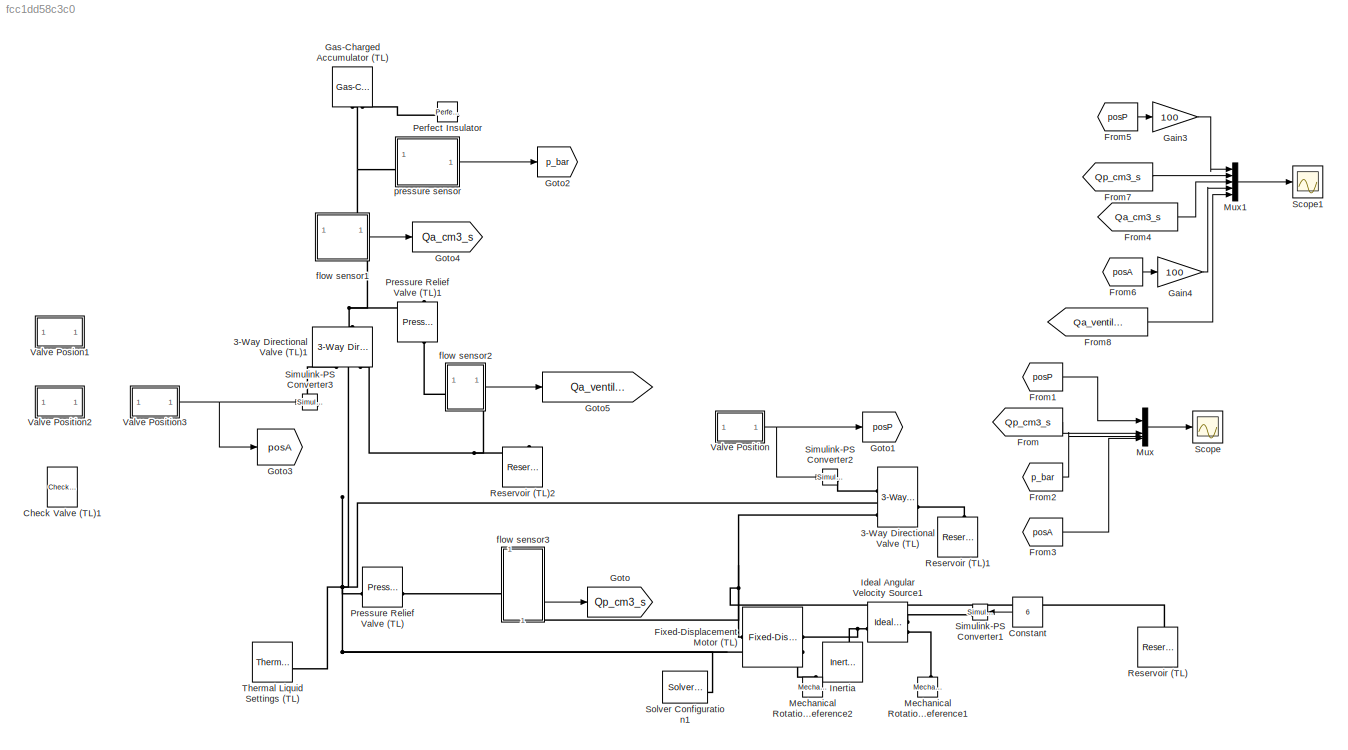
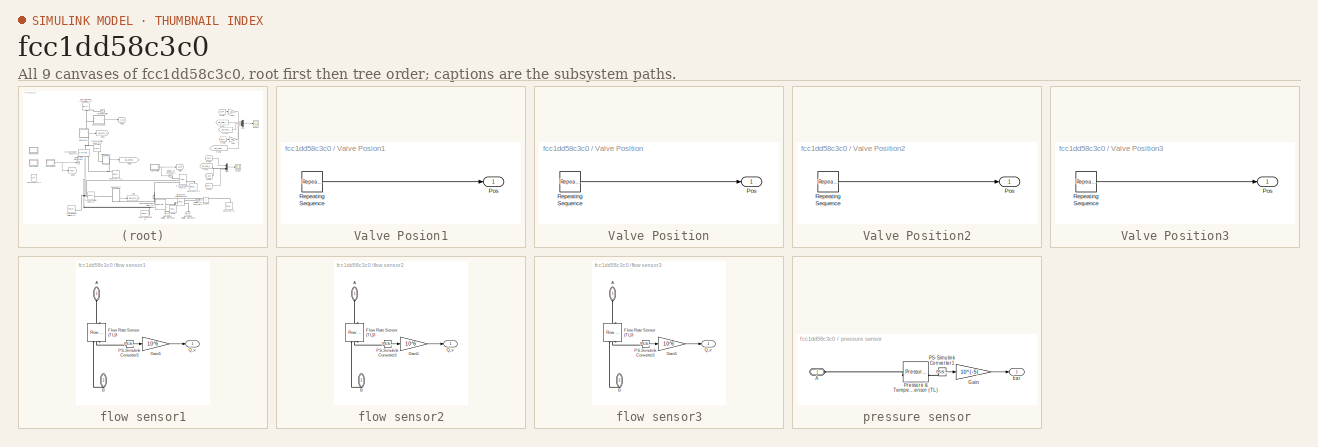
[diagram: thumbnail index - all 9 canvases of the model, root first then tree order]
MODEL slx_fcc1dd58c3c0
KIND model
CONFIG AbsTol = auto
CONFIG EnableMultiTasking = off
CONFIG FixedStep = auto
CONFIG MaxStep = auto
CONFIG MinStep = auto
CONFIG RelTol = 1e-3
CONFIG SampleTimeConstraint = Unconstrained
CONFIG SolverName = VariableStepAuto
CONFIG StartTime = 0.0
CONFIG StopTime = 30
BLOCK [Reference] 3-Way Directional Valve (TL)  REF=SimscapeFluids_lib/Thermal Liquid/Valves & Orifices/Directional Control
Valves/3-Way Directional
Valve (TL)
  SourceBlock = SimscapeFluids_lib/Thermal Liquid/Valves & Orifices/Directional Control\nValves/3-Way Directional\nValve (TL)
  SourceType = 3-Way Directional\nValve (TL)
BLOCK [Reference] 3-Way Directional Valve (TL)1  REF=SimscapeFluids_lib/Thermal Liquid/Valves & Orifices/Directional Control
Valves/3-Way Directional
Valve (TL)
  NameLocation = right
  SourceBlock = SimscapeFluids_lib/Thermal Liquid/Valves & Orifices/Directional Control\nValves/3-Way Directional\nValve (TL)
  SourceType = 3-Way Directional\nValve (TL)
BLOCK [Reference] Check Valve (TL)1  REF=SimscapeFluids_lib/Thermal Liquid/Valves & Orifices/Directional Control
Valves/Check Valve (TL)
  Commented = on
  NameLocation = right
  SourceBlock = SimscapeFluids_lib/Thermal Liquid/Valves & Orifices/Directional Control\nValves/Check Valve (TL)
  SourceType = Check Valve (TL)
BLOCK [Constant] Constant
  NameLocation = top
  Value = 6
BLOCK [Reference] Fixed-Displacement Motor (TL)  REF=SimscapeFluids_lib/Thermal Liquid/Pumps & Motors/Fixed-Displacement
Motor (TL)
  SourceBlock = SimscapeFluids_lib/Thermal Liquid/Pumps & Motors/Fixed-Displacement\nMotor (TL)
  SourceType = Fixed-Displacement\nMotor (TL)
BLOCK [From] From
  GotoTag = Qp_cm3_s
BLOCK [From] From1
  GotoTag = posP
BLOCK [From] From2
  GotoTag = p_bar
BLOCK [From] From3
  GotoTag = posA
BLOCK [From] From4
  GotoTag = Qa_cm3_s
BLOCK [From] From5
  GotoTag = posP
BLOCK [From] From6
  GotoTag = posA
BLOCK [From] From7
  GotoTag = Qp_cm3_s
BLOCK [From] From8
  GotoTag = Qa_ventile_cm3_s
BLOCK [Gain] Gain3
  Gain = 100
BLOCK [Gain] Gain4
  Gain = 100
BLOCK [Reference] Gas-Charged Accumulator (TL)  REF=SimscapeFluids_lib/Thermal Liquid/Tanks & Accumulators/Gas-Charged
Accumulator (TL)
  NameLocation = right
  SourceBlock = SimscapeFluids_lib/Thermal Liquid/Tanks & Accumulators/Gas-Charged\nAccumulator (TL)
  SourceType = Gas-Charged\nAccumulator (TL)
BLOCK [Goto] Goto
  GotoTag = Qp_cm3_s
BLOCK [Goto] Goto1
  GotoTag = posP
BLOCK [Goto] Goto2
  GotoTag = p_bar
BLOCK [Goto] Goto3
  GotoTag = posA
BLOCK [Goto] Goto4
  GotoTag = Qa_cm3_s
BLOCK [Goto] Goto5
  GotoTag = Qa_ventile_cm3_s
BLOCK [Reference] Ideal Angular Velocity Source1  REF=fl_lib/Mechanical/Mechanical Sources/Ideal Angular
Velocity Source
  SourceBlock = fl_lib/Mechanical/Mechanical Sources/Ideal Angular\nVelocity Source
  SourceType = Ideal Angular\nVelocity Source
BLOCK [Reference] Inertia  REF=fl_lib/Mechanical/Rotational Elements/Inertia
  NameLocation = right
  SourceBlock = fl_lib/Mechanical/Rotational Elements/Inertia
  SourceType = Inertia
BLOCK [Reference] Mechanical Rotational Reference1  REF=fl_lib/Mechanical/Rotational Elements/Mechanical
Rotational Reference
  NameLocation = right
  SourceBlock = fl_lib/Mechanical/Rotational Elements/Mechanical\nRotational Reference
  SourceType = Mechanical\nRotational Reference
BLOCK [Reference] Mechanical Rotational Reference2  REF=fl_lib/Mechanical/Rotational Elements/Mechanical
Rotational Reference
  NameLocation = right
  SourceBlock = fl_lib/Mechanical/Rotational Elements/Mechanical\nRotational Reference
  SourceType = Mechanical\nRotational Reference
BLOCK [Mux] Mux
  DisplayOption = bar
BLOCK [Mux] Mux1
  DisplayOption = bar
  Inputs = 5
BLOCK [Reference] Perfect Insulator  REF=fl_lib/Thermal/Thermal Elements/Perfect Insulator
  NameLocation = top
  SourceBlock = fl_lib/Thermal/Thermal Elements/Perfect Insulator
  SourceType = Perfect Insulator
BLOCK [Reference] Pressure Relief Valve (TL)  REF=SimscapeFluids_lib/Thermal Liquid/Valves & Orifices/Pressure Control
Valves/Pressure Relief
Valve (TL)
  SourceBlock = SimscapeFluids_lib/Thermal Liquid/Valves & Orifices/Pressure Control\nValves/Pressure Relief\nValve (TL)
  SourceType = Pressure Relief\nValve (TL)
BLOCK [Reference] Pressure Relief Valve (TL)1  REF=SimscapeFluids_lib/Thermal Liquid/Valves & Orifices/Pressure Control
Valves/Pressure Relief
Valve (TL)
  NameLocation = left
  SourceBlock = SimscapeFluids_lib/Thermal Liquid/Valves & Orifices/Pressure Control\nValves/Pressure Relief\nValve (TL)
  SourceType = Pressure Relief\nValve (TL)
BLOCK [Reference] Reservoir (TL)  REF=fl_lib/Thermal Liquid/Elements/Reservoir (TL)
  NameLocation = right
  SourceBlock = fl_lib/Thermal Liquid/Elements/Reservoir (TL)
  SourceType = Reservoir (TL)
BLOCK [Reference] Reservoir (TL)1  REF=fl_lib/Thermal Liquid/Elements/Reservoir (TL)
  NameLocation = right
  SourceBlock = fl_lib/Thermal Liquid/Elements/Reservoir (TL)
  SourceType = Reservoir (TL)
BLOCK [Reference] Reservoir (TL)2  REF=fl_lib/Thermal Liquid/Elements/Reservoir (TL)
  NameLocation = right
  SourceBlock = fl_lib/Thermal Liquid/Elements/Reservoir (TL)
  SourceType = Reservoir (TL)
BLOCK [Scope] Scope
  Floating = off
  NumInputPorts = 1
  ScopeSpecificationString = Simulink.scopes.TimeScopeBlockCfg('CurrentConfiguration', extmgr.ConfigurationSet(extmgr.Configuration('Core','General UI',true),extmgr.Configuration('Core','Source UI',true),extmgr.Configuration('Sources','WiredSimulink',true),extmgr.Configuration('Visuals','Time Domain',true,'SerializedDisplays',{struct('MinYLimReal','-3.57412','MaxYLimReal','31.16712','YLabelReal','','MinYLimMag','0.00000','Max...<+1396ch>
BLOCK [Scope] Scope1
  Floating = off
  NumInputPorts = 1
  ScopeSpecificationString = Simulink.scopes.TimeScopeBlockCfg('CurrentConfiguration', extmgr.ConfigurationSet(extmgr.Configuration('Core','General UI',true),extmgr.Configuration('Core','Source UI',true),extmgr.Configuration('Sources','WiredSimulink',true,'DataLoggingVariableName','ScopeData1'),extmgr.Configuration('Visuals','Time Domain',true,'SerializedDisplays',{struct('MinYLimReal','-112.50313','MaxYLimReal','726.05814','...<+1460ch>
BLOCK [Reference] Simulink-PS Converter1  REF=nesl_utility/Simulink-PS
Converter
  NameLocation = top
  SourceBlock = nesl_utility/Simulink-PS\nConverter
  SourceType = Simulink-PS\nConverter
BLOCK [Reference] Simulink-PS Converter2  REF=nesl_utility/Simulink-PS
Converter
  SourceBlock = nesl_utility/Simulink-PS\nConverter
  SourceType = Simulink-PS\nConverter
BLOCK [Reference] Simulink-PS Converter3  REF=nesl_utility/Simulink-PS
Converter
  SourceBlock = nesl_utility/Simulink-PS\nConverter
  SourceType = Simulink-PS\nConverter
BLOCK [Reference] Solver Configuration1  REF=nesl_utility/Solver
Configuration
  SourceBlock = nesl_utility/Solver\nConfiguration
  SourceType = Solver\nConfiguration
BLOCK [Reference] Thermal Liquid Settings (TL)  REF=fl_lib/Thermal Liquid/Utilities/Thermal Liquid
Settings (TL)
  SourceBlock = fl_lib/Thermal Liquid/Utilities/Thermal Liquid\nSettings (TL)
  SourceType = Thermal Liquid\nSettings (TL)
BLOCK [SubSystem] Valve Posion1
  Commented = on
BLOCK [Outport] Valve Posion1/Pos
BLOCK [Reference] Valve Posion1/Repeating Sequence  REF=simulink/Sources/Repeating
Sequence
  SourceBlock = simulink/Sources/Repeating\nSequence
  SourceType = Repeating table
BLOCK [SubSystem] Valve Position
BLOCK [Outport] Valve Position/Pos
BLOCK [Reference] Valve Position/Repeating Sequence  REF=simulink/Sources/Repeating
Sequence
  SourceBlock = simulink/Sources/Repeating\nSequence
  SourceType = Repeating table
BLOCK [SubSystem] Valve Position2
  Commented = on
BLOCK [Outport] Valve Position2/Pos
BLOCK [Reference] Valve Position2/Repeating Sequence  REF=simulink/Sources/Repeating
Sequence
  SourceBlock = simulink/Sources/Repeating\nSequence
  SourceType = Repeating table
BLOCK [SubSystem] Valve Position3
BLOCK [Outport] Valve Position3/Pos
BLOCK [Reference] Valve Position3/Repeating Sequence  REF=simulink/Sources/Repeating
Sequence
  SourceBlock = simulink/Sources/Repeating\nSequence
  SourceType = Repeating table
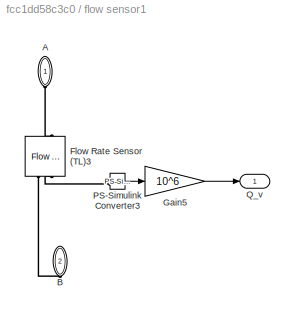
BLOCK [SubSystem] flow sensor1
  PortSchema = {"entries":[{"content":{"sides":[{"content":{},"type":"ConnectorPlacement.EquallySpacedRectSide","uuid":"64eebb38-407b-4473-bb63-6fc68657ced3"},{"content":{"connectorIds":["Out1"],"side":"RIGHT"},"type":"ConnectorPlacement.EquallySpacedRectSide","uuid":"fe4642c7-b9bb-4607-97dc-199c5570e8b5"},{"content":{"connectorIds":["LConn1"],"side":"TOP"},"type":"ConnectorPlacement.EquallySpacedRectSide","uuid...<+378ch>
BLOCK [PMIOPort] flow sensor1/A
  NameLocation = left
  Side = Left
BLOCK [PMIOPort] flow sensor1/B
  NameLocation = left
  Port = 2
  Side = Right
BLOCK [Reference] flow sensor1/Flow Rate Sensor (TL)3  REF=fl_lib/Thermal Liquid/Sensors/Flow Rate Sensor
(TL)
  NameLocation = left
  SourceBlock = fl_lib/Thermal Liquid/Sensors/Flow Rate Sensor\n(TL)
  SourceType = Flow Rate Sensor\n(TL)
BLOCK [Gain] flow sensor1/Gain5
  Gain = 10^6
BLOCK [Reference] flow sensor1/PS-Simulink Converter3  REF=nesl_utility/PS-Simulink
Converter
  SourceBlock = nesl_utility/PS-Simulink\nConverter
  SourceType = PS-Simulink\nConverter
BLOCK [Outport] flow sensor1/Q_v
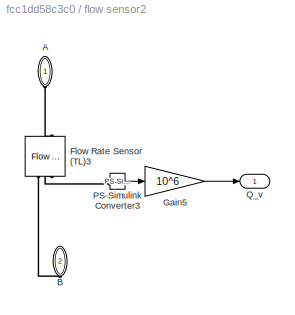
BLOCK [SubSystem] flow sensor2
  PortSchema = {"entries":[{"content":{"sides":[{"content":{},"type":"ConnectorPlacement.EquallySpacedRectSide","uuid":"64eebb38-407b-4473-bb63-6fc68657ced3"},{"content":{"connectorIds":["Out1"],"side":"RIGHT"},"type":"ConnectorPlacement.EquallySpacedRectSide","uuid":"fe4642c7-b9bb-4607-97dc-199c5570e8b5"},{"content":{"connectorIds":["LConn1"],"side":"TOP"},"type":"ConnectorPlacement.EquallySpacedRectSide","uuid...<+378ch>
BLOCK [PMIOPort] flow sensor2/A
  NameLocation = left
  Side = Left
BLOCK [PMIOPort] flow sensor2/B
  NameLocation = left
  Port = 2
  Side = Right
BLOCK [Reference] flow sensor2/Flow Rate Sensor (TL)3  REF=fl_lib/Thermal Liquid/Sensors/Flow Rate Sensor
(TL)
  NameLocation = left
  SourceBlock = fl_lib/Thermal Liquid/Sensors/Flow Rate Sensor\n(TL)
  SourceType = Flow Rate Sensor\n(TL)
BLOCK [Gain] flow sensor2/Gain5
  Gain = 10^6
BLOCK [Reference] flow sensor2/PS-Simulink Converter3  REF=nesl_utility/PS-Simulink
Converter
  SourceBlock = nesl_utility/PS-Simulink\nConverter
  SourceType = PS-Simulink\nConverter
BLOCK [Outport] flow sensor2/Q_v
BLOCK [SubSystem] flow sensor3
  PortSchema = {"entries":[{"content":{"sides":[{"content":{},"type":"ConnectorPlacement.EquallySpacedRectSide","uuid":"64eebb38-407b-4473-bb63-6fc68657ced3"},{"content":{"side":"RIGHT"},"type":"ConnectorPlacement.EquallySpacedRectSide","uuid":"fe4642c7-b9bb-4607-97dc-199c5570e8b5"},{"content":{"connectorIds":["LConn1"],"side":"TOP"},"type":"ConnectorPlacement.EquallySpacedRectSide","uuid":"f27d07a7-79fc-4ae0-b6...<+361ch>
BLOCK [PMIOPort] flow sensor3/A
  NameLocation = left
  Side = Left
BLOCK [PMIOPort] flow sensor3/B
  NameLocation = left
  Port = 2
  Side = Right
BLOCK [Reference] flow sensor3/Flow Rate Sensor (TL)3  REF=fl_lib/Thermal Liquid/Sensors/Flow Rate Sensor
(TL)
  NameLocation = left
  SourceBlock = fl_lib/Thermal Liquid/Sensors/Flow Rate Sensor\n(TL)
  SourceType = Flow Rate Sensor\n(TL)
BLOCK [Gain] flow sensor3/Gain5
  Gain = 10^6
BLOCK [Reference] flow sensor3/PS-Simulink Converter3  REF=nesl_utility/PS-Simulink
Converter
  SourceBlock = nesl_utility/PS-Simulink\nConverter
  SourceType = PS-Simulink\nConverter
BLOCK [Outport] flow sensor3/Q_v
BLOCK [SubSystem] pressure sensor
BLOCK [PMIOPort] pressure sensor/A
  Side = Left
BLOCK [Gain] pressure sensor/Gain
  Gain = 10^(-5)
BLOCK [Reference] pressure sensor/PS-Simulink Converter1  REF=nesl_utility/PS-Simulink
Converter
  SourceBlock = nesl_utility/PS-Simulink\nConverter
  SourceType = PS-Simulink\nConverter
BLOCK [Reference] pressure sensor/Pressure & Temperature Sensor (TL)  REF=fl_lib/Thermal Liquid/Sensors/Pressure &
Temperature Sensor
(TL)
  SourceBlock = fl_lib/Thermal Liquid/Sensors/Pressure &\nTemperature Sensor\n(TL)
  SourceType = Pressure &\nTemperature Sensor\n(TL)
BLOCK [Outport] pressure sensor/bar
LINE Constant:1 -> Simulink-PS Converter1:1
LINE From1:1 -> Mux:1
LINE From2:1 -> Mux:3
LINE From3:1 -> Mux:4
LINE From4:1 -> Mux1:3
LINE From5:1 -> Gain3:1
LINE From6:1 -> Gain4:1
LINE From7:1 -> Mux1:2
LINE From8:1 -> Mux1:5
LINE From:1 -> Mux:2
LINE Gain3:1 -> Mux1:1
LINE Gain4:1 -> Mux1:4
LINE Mux1:1 -> Scope1:1
LINE Mux:1 -> Scope:1
LINE Valve Posion1/Repeating Sequence:1 -> Valve Posion1/Pos:1
LINE Valve Position/Repeating Sequence:1 -> Valve Position/Pos:1
LINE Valve Position2/Repeating Sequence:1 -> Valve Position2/Pos:1
LINE Valve Position3/Repeating Sequence:1 -> Valve Position3/Pos:1
NET Valve Position3:1 -> Goto3:1, Simulink-PS Converter3:1
NET Valve Position:1 -> Goto1:1, Simulink-PS Converter2:1
LINE flow sensor1/Gain5:1 -> flow sensor1/Q_v:1
LINE flow sensor1/PS-Simulink Converter3:1 -> flow sensor1/Gain5:1
LINE flow sensor1:1 -> Goto4:1
LINE flow sensor2/Gain5:1 -> flow sensor2/Q_v:1
LINE flow sensor2/PS-Simulink Converter3:1 -> flow sensor2/Gain5:1
LINE flow sensor2:1 -> Goto5:1
LINE flow sensor3/Gain5:1 -> flow sensor3/Q_v:1
LINE flow sensor3/PS-Simulink Converter3:1 -> flow sensor3/Gain5:1
LINE flow sensor3:1 -> Goto:1
LINE pressure sensor/Gain:1 -> pressure sensor/bar:1
LINE pressure sensor/PS-Simulink Converter1:1 -> pressure sensor/Gain:1
LINE pressure sensor:1 -> Goto2:1
PNET net1: 3-Way Directional Valve (TL)1:LConn1 -- Pressure Relief Valve (TL)1:LConn1 -- flow sensor1:RConn1
PLINE 3-Way Directional Valve (TL)1:RConn1 -- Simulink-PS Converter3:RConn1
PNET net2: 3-Way Directional Valve (TL)1:RConn2 -- 3-Way Directional Valve (TL):RConn2 -- Fixed-Displacement Motor (TL):LConn2 -- Pressure Relief Valve (TL):LConn1 -- Solver Configuration1:RConn1 -- Thermal Liquid Settings (TL):RConn1
PNET net3: 3-Way Directional Valve (TL)1:RConn3 -- Reservoir (TL)2:LConn1 -- flow sensor2:RConn1
PLINE 3-Way Directional Valve (TL):LConn1 -- Reservoir (TL)1:LConn1
PLINE 3-Way Directional Valve (TL):RConn1 -- Simulink-PS Converter2:RConn1
PNET net4: 3-Way Directional Valve (TL):RConn3 -- Fixed-Displacement Motor (TL):LConn1 -- Reservoir (TL):LConn1 -- flow sensor3:RConn1
PNET net5: Fixed-Displacement Motor (TL):RConn1 -- Ideal Angular Velocity Source1:LConn1 -- Inertia:LConn1
PLINE Fixed-Displacement Motor (TL):RConn2 -- Mechanical Rotational Reference2:LConn1
PNET net6: Gas-Charged Accumulator (TL):RConn1 -- flow sensor1:LConn1 -- pressure sensor:LConn1
PLINE Gas-Charged Accumulator (TL):RConn2 -- Perfect Insulator:LConn1
PLINE Ideal Angular Velocity Source1:RConn1 -- Simulink-PS Converter1:RConn1
PLINE Ideal Angular Velocity Source1:RConn2 -- Mechanical Rotational Reference1:LConn1
PLINE Pressure Relief Valve (TL)1:RConn1 -- flow sensor2:LConn1
PLINE Pressure Relief Valve (TL):RConn1 -- flow sensor3:LConn1
PLINE flow sensor1/A:RConn1 -- flow sensor1/Flow Rate Sensor (TL)3:LConn1
PLINE flow sensor1/B:RConn1 -- flow sensor1/Flow Rate Sensor (TL)3:RConn1
PLINE flow sensor1/Flow Rate Sensor (TL)3:RConn3 -- flow sensor1/PS-Simulink Converter3:LConn1
PLINE flow sensor2/A:RConn1 -- flow sensor2/Flow Rate Sensor (TL)3:LConn1
PLINE flow sensor2/B:RConn1 -- flow sensor2/Flow Rate Sensor (TL)3:RConn1
PLINE flow sensor2/Flow Rate Sensor (TL)3:RConn3 -- flow sensor2/PS-Simulink Converter3:LConn1
PLINE flow sensor3/A:RConn1 -- flow sensor3/Flow Rate Sensor (TL)3:LConn1
PLINE flow sensor3/B:RConn1 -- flow sensor3/Flow Rate Sensor (TL)3:RConn1
PLINE flow sensor3/Flow Rate Sensor (TL)3:RConn3 -- flow sensor3/PS-Simulink Converter3:LConn1
PLINE pressure sensor/A:RConn1 -- pressure sensor/Pressure & Temperature Sensor (TL):LConn1
PLINE pressure sensor/PS-Simulink Converter1:LConn1 -- pressure sensor/Pressure & Temperature Sensor (TL):RConn1
note: NET lines group one-source signal fan-out (src -> all destinations, sorted); 1:1 wires keep LINE; PNET lines group multi-terminal physical nets as a canonical sorted terminal list (undirected conserving connections); 2-terminal nets keep the pairwise PLINE form
